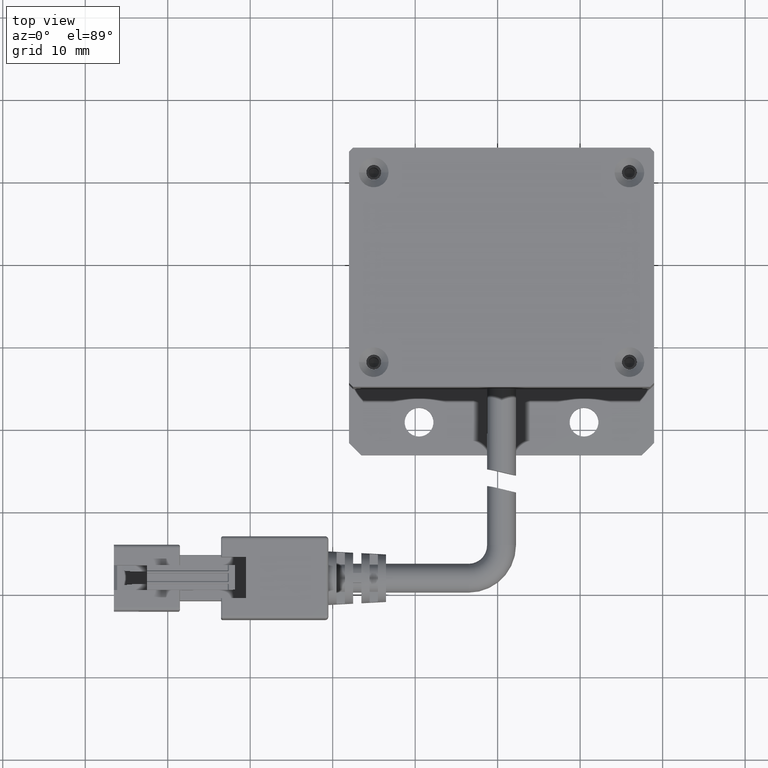
[diagram: clean part render]
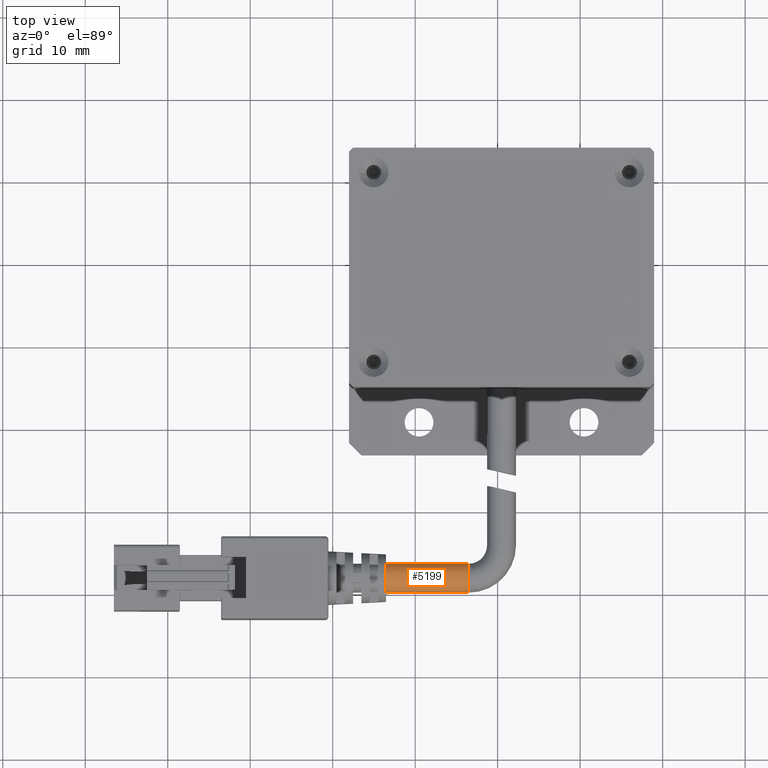
[diagram: same view with one face highlighted and labeled with its STEP entity id]
A machine part, top view. The second image highlights one B-rep face of the part: STEP entity #5199.
In plain terms, the highlighted cylindrical surface (edge-blend (fillet) strip) has radius 1.75 mm, axis along (-1, -0, -0).
Its self-contained STEP definition (entity closure, byte-faithful):
#246 = CARTESIAN_POINT ( 'NONE',  ( 0.0000000000000000000, -14.00000000000000200, 0.0000000000000000000 ) ) ;
#317 = EDGE_CURVE ( 'NONE', #10605, #5488, #6824, .T. ) ;
#1030 = AXIS2_PLACEMENT_3D ( 'NONE', #2881, #8782, #3704 ) ;
#1098 = VECTOR ( 'NONE', #9036, 1000.000000000000000 ) ;
#1203 = VECTOR ( 'NONE', #1424, 1000.000000000000000 ) ;
#1424 = DIRECTION ( 'NONE',  ( -0.0000000000000000000, 1.000000000000000000, -0.0000000000000000000 ) ) ;
#1693 = EDGE_LOOP ( 'NONE', ( #8133, #7188, #4340, #9113 ) ) ;
#2693 = CYLINDRICAL_SURFACE ( 'NONE', #3216, 1.750000000000000000 ) ;
#2881 = CARTESIAN_POINT ( 'NONE',  ( 0.0000000000000000000, -7.000000000000000000, 0.0000000000000000000 ) ) ;
#3216 = AXIS2_PLACEMENT_3D ( 'NONE', #246, #5374, #10447 ) ;
#3240 = CARTESIAN_POINT ( 'NONE',  ( 0.0000000000000000000, -7.000000000000000000, 1.750000000000000000 ) ) ;
#3478 = LINE ( 'NONE', #7374, #1203 ) ;
#3632 = CARTESIAN_POINT ( 'NONE',  ( -3.186635328391150800E-032, -17.00000000000000000, -3.673940397442059400E-016 ) ) ;
#3704 = DIRECTION ( 'NONE',  ( 0.0000000000000000000, 0.0000000000000000000, -1.000000000000000000 ) ) ;
#4340 = ORIENTED_EDGE ( 'NONE', *, *, #5906, .F. ) ;
#4491 = DIRECTION ( 'NONE',  ( 0.0000000000000000000, 0.0000000000000000000, -1.000000000000000000 ) ) ;
#4741 = EDGE_CURVE ( 'NONE', #10605, #9164, #7866, .T. ) ;
#4900 = CARTESIAN_POINT ( 'NONE',  ( 2.143131898507868500E-016, -17.00000000000000000, -1.750000000000000400 ) ) ;
#5199 = ADVANCED_FACE ( 'NONE', ( #7178 ), #2693, .T. ) ;
#5374 = DIRECTION ( 'NONE',  ( -0.0000000000000000000, 1.000000000000000000, -0.0000000000000000000 ) ) ;
#5488 = VERTEX_POINT ( 'NONE', #9961 ) ;
#5906 = EDGE_CURVE ( 'NONE', #9388, #9164, #9744, .T. ) ;
#6536 = CARTESIAN_POINT ( 'NONE',  ( 2.143131898507868300E-016, -14.00000000000000200, -1.750000000000000000 ) ) ;
#6824 = CIRCLE ( 'NONE', #10186, 1.750000000000000000 ) ;
#7178 = FACE_OUTER_BOUND ( 'NONE', #1693, .T. ) ;
#7188 = ORIENTED_EDGE ( 'NONE', *, *, #4741, .T. ) ;
#7374 = CARTESIAN_POINT ( 'NONE',  ( 0.0000000000000000000, -14.00000000000000200, 1.750000000000000000 ) ) ;
#7866 = LINE ( 'NONE', #6536, #1098 ) ;
#7957 = EDGE_CURVE ( 'NONE', #5488, #9388, #3478, .T. ) ;
#8133 = ORIENTED_EDGE ( 'NONE', *, *, #317, .F. ) ;
#8782 = DIRECTION ( 'NONE',  ( -0.0000000000000000000, 1.000000000000000000, -0.0000000000000000000 ) ) ;
#9036 = DIRECTION ( 'NONE',  ( -0.0000000000000000000, 1.000000000000000000, -0.0000000000000000000 ) ) ;
#9113 = ORIENTED_EDGE ( 'NONE', *, *, #7957, .F. ) ;
#9164 = VERTEX_POINT ( 'NONE', #9656 ) ;
#9388 = VERTEX_POINT ( 'NONE', #3240 ) ;
#9545 = DIRECTION ( 'NONE',  ( 0.0000000000000000000, -1.000000000000000000, 0.0000000000000000000 ) ) ;
#9656 = CARTESIAN_POINT ( 'NONE',  ( 2.143131898507868300E-016, -7.000000000000000000, -1.750000000000000000 ) ) ;
#9744 = CIRCLE ( 'NONE', #1030, 1.750000000000000000 ) ;
#9961 = CARTESIAN_POINT ( 'NONE',  ( -5.345529420184391300E-048, -17.00000000000000000, 1.749999999999999600 ) ) ;
#10186 = AXIS2_PLACEMENT_3D ( 'NONE', #3632, #9545, #4491 ) ;
#10447 = DIRECTION ( 'NONE',  ( 0.0000000000000000000, 0.0000000000000000000, 1.000000000000000000 ) ) ;
#10605 = VERTEX_POINT ( 'NONE', #4900 ) ;